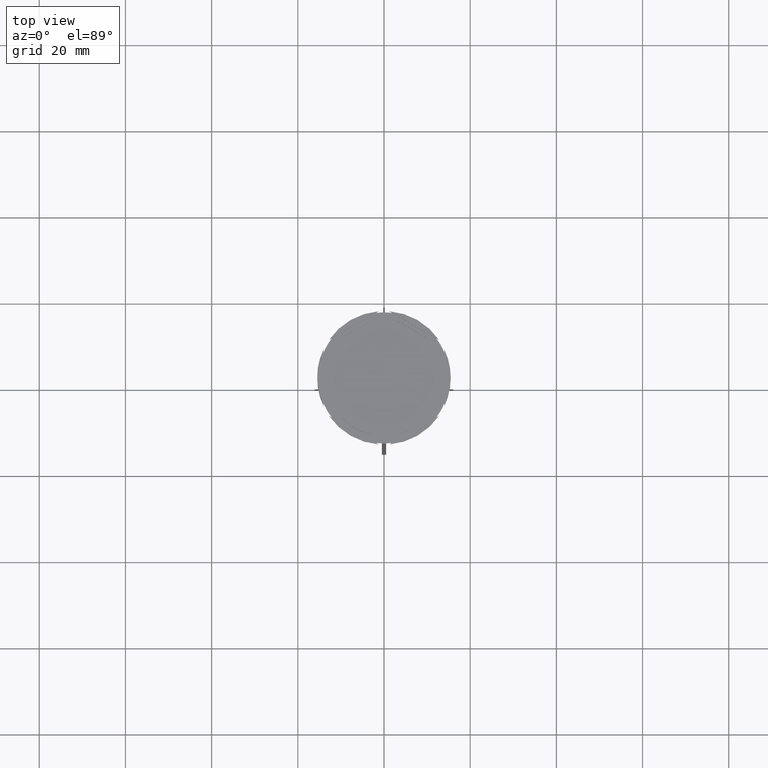
[diagram: clean part render]
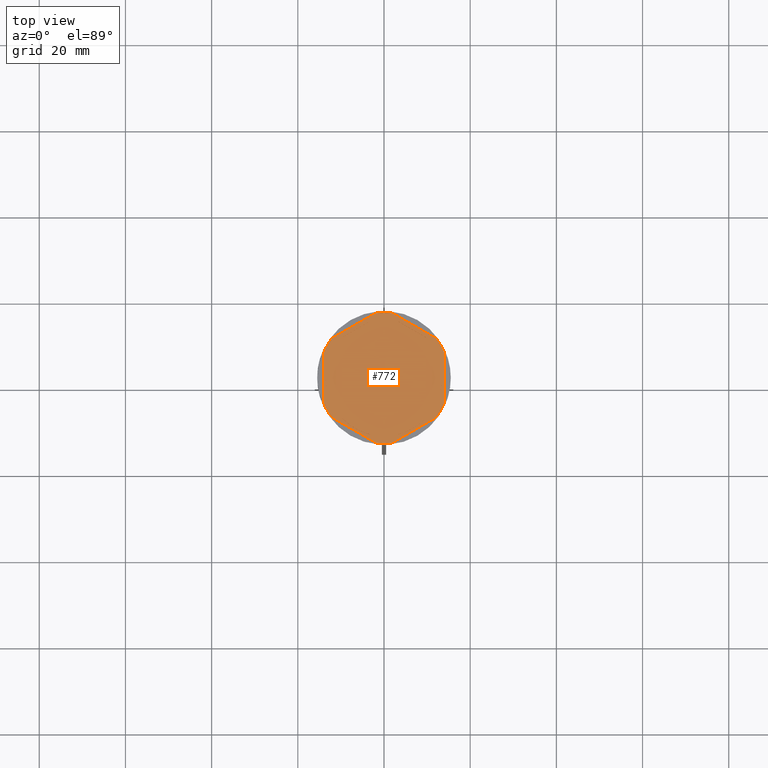
[diagram: same view with one face highlighted and labeled with its STEP entity id]
A machine part, top view. The second image highlights one B-rep face of the part: STEP entity #772.
In plain terms, the highlighted planar face has unit normal (0, 0, 1).
Its self-contained STEP definition (entity closure, byte-faithful):
#2 = DIRECTION ( 'NONE',  ( -0.8660254037844387076, 0.4999999999999997780, 0.000000000000000000 ) ) ;
#4 = CARTESIAN_POINT ( 'NONE',  ( -9.652380053229617118, -9.438302776877577571, -1.000000000000000888 ) ) ;
#20 = CARTESIAN_POINT ( 'NONE',  ( 9.652380053229610013, 9.438302776877588229, -1.000000000000000888 ) ) ;
#23 = DIRECTION ( 'NONE',  ( -0.000000000000000000, -0.000000000000000000, -1.000000000000000000 ) ) ;
#28 = EDGE_LOOP ( 'NONE', ( #2784, #622 ) ) ;
#30 = EDGE_CURVE ( 'NONE', #685, #1607, #906, .T. ) ;
#51 = AXIS2_PLACEMENT_3D ( 'NONE', #2876, #689, #1556 ) ;
#64 = DIRECTION ( 'NONE',  ( 0.8660254037844385966, 0.5000000000000001110, -0.000000000000000000 ) ) ;
#66 = CARTESIAN_POINT ( 'NONE',  ( 13.00000000000000000, -7.505553499465137612, -1.000000000000000888 ) ) ;
#91 = CIRCLE ( 'NONE', #131, 13.50000000000000000 ) ;
#101 = VECTOR ( 'NONE', #136, 1000.000000000000000 ) ;
#105 = VERTEX_POINT ( 'NONE', #2275 ) ;
#111 = DIRECTION ( 'NONE',  ( 0.000000000000000000, 1.000000000000000000, 0.000000000000000000 ) ) ;
#116 = CARTESIAN_POINT ( 'NONE',  ( -13.00000000000000178, 3.640054944640251033, -1.000000000000000888 ) ) ;
#131 = AXIS2_PLACEMENT_3D ( 'NONE', #2390, #872, #1767 ) ;
#136 = DIRECTION ( 'NONE',  ( 0.000000000000000000, -1.000000000000000000, 0.000000000000000000 ) ) ;
#138 = CARTESIAN_POINT ( 'NONE',  ( -3.347619946770386434, 13.07835772151782905, -1.000000000000000888 ) ) ;
#159 = DIRECTION ( 'NONE',  ( 1.000000000000000000, -5.329070518200752183E-15, 0.000000000000000000 ) ) ;
#172 = VERTEX_POINT ( 'NONE', #2703 ) ;
#177 = VECTOR ( 'NONE', #747, 1000.000000000000000 ) ;
#178 = VERTEX_POINT ( 'NONE', #1872 ) ;
#221 = CARTESIAN_POINT ( 'NONE',  ( -1.873597752809485151, -15.08408537037189312, -1.000000000000000000 ) ) ;
#232 = VERTEX_POINT ( 'NONE', #1187 ) ;
#260 = CARTESIAN_POINT ( 'NONE',  ( -13.00000000000000178, -7.505553499465134060, -1.000000000000000888 ) ) ;
#271 = LINE ( 'NONE', #941, #662 ) ;
#321 = CARTESIAN_POINT ( 'NONE',  ( 1.873597752809481598, 15.08408537037189134, -1.000000000000000000 ) ) ;
#344 = VERTEX_POINT ( 'NONE', #321 ) ;
#349 = VERTEX_POINT ( 'NONE', #116 ) ;
#353 = DIRECTION ( 'NONE',  ( 0.8660254037844385966, 0.5000000000000000000, 0.000000000000000000 ) ) ;
#355 = CARTESIAN_POINT ( 'NONE',  ( -9.652380053229617118, 9.438302776877577571, -1.000000000000000888 ) ) ;
#356 = VERTEX_POINT ( 'NONE', #221 ) ;
#362 = EDGE_CURVE ( 'NONE', #1274, #839, #925, .T. ) ;
#365 = EDGE_CURVE ( 'NONE', #2812, #2599, #411, .T. ) ;
#371 = CARTESIAN_POINT ( 'NONE',  ( -14.00000000000000178, 8.082903768654759347, -1.000000000000000000 ) ) ;
#378 = DIRECTION ( 'NONE',  ( -0.000000000000000000, -0.000000000000000000, -1.000000000000000000 ) ) ;
#396 = CARTESIAN_POINT ( 'NONE',  ( 0.000000000000000000, 0.000000000000000000, -1.000000000000000000 ) ) ;
#411 = CIRCLE ( 'NONE', #1396, 15.19999999999999929 ) ;
#413 = FACE_BOUND ( 'NONE', #2527, .T. ) ;
#414 = AXIS2_PLACEMENT_3D ( 'NONE', #1135, #924, #1384 ) ;
#419 = ORIENTED_EDGE ( 'NONE', *, *, #2046, .F. ) ;
#454 = EDGE_CURVE ( 'NONE', #2812, #344, #827, .T. ) ;
#477 = CARTESIAN_POINT ( 'NONE',  ( 0.000000000000000000, 0.000000000000000000, -1.000000000000000000 ) ) ;
#501 = EDGE_CURVE ( 'NONE', #1392, #232, #91, .T. ) ;
#507 = ORIENTED_EDGE ( 'NONE', *, *, #2616, .F. ) ;
#521 = ORIENTED_EDGE ( 'NONE', *, *, #1687, .T. ) ;
#532 = VERTEX_POINT ( 'NONE', #20 ) ;
#578 = ORIENTED_EDGE ( 'NONE', *, *, #942, .F. ) ;
#600 = VECTOR ( 'NONE', #1480, 1000.000000000000000 ) ;
#622 = ORIENTED_EDGE ( 'NONE', *, *, #852, .F. ) ;
#633 = EDGE_LOOP ( 'NONE', ( #507, #2667, #2121 ) ) ;
#634 = CARTESIAN_POINT ( 'NONE',  ( 0.000000000000000000, 0.000000000000000000, -1.000000000000000000 ) ) ;
#645 = CARTESIAN_POINT ( 'NONE',  ( -1.873597752809482486, 15.08408537037188957, -1.000000000000000000 ) ) ;
#654 = ORIENTED_EDGE ( 'NONE', *, *, #365, .F. ) ;
#662 = VECTOR ( 'NONE', #2720, 1000.000000000000114 ) ;
#670 = DIRECTION ( 'NONE',  ( 0.8660254037844388186, -0.4999999999999997780, 0.000000000000000000 ) ) ;
#672 = VERTEX_POINT ( 'NONE', #355 ) ;
#678 = CARTESIAN_POINT ( 'NONE',  ( 0.000000000000000000, 0.000000000000000000, -1.000000000000000000 ) ) ;
#681 = DIRECTION ( 'NONE',  ( -0.8660254037844385966, 0.5000000000000001110, 0.000000000000000000 ) ) ;
#682 = VERTEX_POINT ( 'NONE', #138 ) ;
#685 = VERTEX_POINT ( 'NONE', #2586 ) ;
#689 = DIRECTION ( 'NONE',  ( 0.000000000000000000, 0.000000000000000000, 1.000000000000000000 ) ) ;
#690 = EDGE_CURVE ( 'NONE', #2430, #178, #1026, .T. ) ;
#747 = DIRECTION ( 'NONE',  ( -2.311253228826398661E-16, -1.000000000000000000, 0.000000000000000000 ) ) ;
#772 = ADVANCED_FACE ( 'NONE', ( #1090, #1150, #413, #2868, #1604, #1543, #866 ), #2454, .T. ) ;
#792 = CIRCLE ( 'NONE', #1548, 13.50000000000000000 ) ;
#793 = EDGE_CURVE ( 'NONE', #1272, #2197, #1116, .T. ) ;
#822 = ORIENTED_EDGE ( 'NONE', *, *, #1002, .F. ) ;
#827 = LINE ( 'NONE', #1724, #1349 ) ;
#839 = VERTEX_POINT ( 'NONE', #2003 ) ;
#841 = AXIS2_PLACEMENT_3D ( 'NONE', #477, #1376, #2724 ) ;
#851 = DIRECTION ( 'NONE',  ( 1.000000000000000000, 0.000000000000000000, 0.000000000000000000 ) ) ;
#852 = EDGE_CURVE ( 'NONE', #1902, #1315, #1115, .T. ) ;
#866 = FACE_OUTER_BOUND ( 'NONE', #1459, .T. ) ;
#871 = ORIENTED_EDGE ( 'NONE', *, *, #362, .F. ) ;
#872 = DIRECTION ( 'NONE',  ( 0.000000000000000000, 0.000000000000000000, 1.000000000000000000 ) ) ;
#878 = DIRECTION ( 'NONE',  ( 1.000000000000000000, 0.000000000000000000, 0.000000000000000000 ) ) ;
#882 = EDGE_CURVE ( 'NONE', #178, #2430, #1670, .T. ) ;
#889 = AXIS2_PLACEMENT_3D ( 'NONE', #1094, #378, #159 ) ;
#892 = LINE ( 'NONE', #1389, #1358 ) ;
#896 = CIRCLE ( 'NONE', #1684, 13.50000000000000000 ) ;
#906 = LINE ( 'NONE', #66, #177 ) ;
#909 = CARTESIAN_POINT ( 'NONE',  ( -3.347619946770386434, -13.07835772151782905, -1.000000000000000888 ) ) ;
#911 = DIRECTION ( 'NONE',  ( -0.000000000000000000, -0.000000000000000000, -1.000000000000000000 ) ) ;
#924 = DIRECTION ( 'NONE',  ( 0.000000000000000000, 0.000000000000000000, 1.000000000000000000 ) ) ;
#925 = CIRCLE ( 'NONE', #2551, 15.19999999999999929 ) ;
#927 = VECTOR ( 'NONE', #681, 1000.000000000000000 ) ;
#936 = EDGE_CURVE ( 'NONE', #105, #2009, #1862, .T. ) ;
#941 = CARTESIAN_POINT ( 'NONE',  ( 0.000000000000000000, 16.16580753730952225, -1.000000000000000000 ) ) ;
#942 = EDGE_CURVE ( 'NONE', #682, #672, #1590, .T. ) ;
#948 = ORIENTED_EDGE ( 'NONE', *, *, #1318, .F. ) ;
#957 = CARTESIAN_POINT ( 'NONE',  ( -13.00000000000000178, 7.505553499465134060, -1.000000000000000888 ) ) ;
#975 = AXIS2_PLACEMENT_3D ( 'NONE', #678, #1086, #851 ) ;
#1002 = EDGE_CURVE ( 'NONE', #1607, #685, #2279, .T. ) ;
#1008 = VERTEX_POINT ( 'NONE', #2863 ) ;
#1013 = VERTEX_POINT ( 'NONE', #645 ) ;
#1026 = LINE ( 'NONE', #1963, #600 ) ;
#1045 = LINE ( 'NONE', #1824, #2139 ) ;
#1077 = VECTOR ( 'NONE', #2198, 1000.000000000000000 ) ;
#1081 = DIRECTION ( 'NONE',  ( 1.000000000000000000, 0.000000000000000000, 0.000000000000000000 ) ) ;
#1086 = DIRECTION ( 'NONE',  ( 0.000000000000000000, 0.000000000000000000, 1.000000000000000000 ) ) ;
#1090 = FACE_BOUND ( 'NONE', #1169, .T. ) ;
#1094 = CARTESIAN_POINT ( 'NONE',  ( 0.000000000000000000, 0.000000000000000000, -1.000000000000000000 ) ) ;
#1104 = CARTESIAN_POINT ( 'NONE',  ( 0.000000000000000000, 0.000000000000000000, -1.000000000000000000 ) ) ;
#1109 = CARTESIAN_POINT ( 'NONE',  ( 0.000000000000000000, 0.000000000000000000, -1.000000000000000000 ) ) ;
#1115 = LINE ( 'NONE', #260, #927 ) ;
#1116 = CIRCLE ( 'NONE', #1488, 15.19999999999999929 ) ;
#1119 = EDGE_LOOP ( 'NONE', ( #578, #948 ) ) ;
#1124 = CIRCLE ( 'NONE', #2750, 13.50000000000000000 ) ;
#1135 = CARTESIAN_POINT ( 'NONE',  ( 0.000000000000000000, 0.000000000000000000, -1.000000000000000000 ) ) ;
#1150 = FACE_BOUND ( 'NONE', #1854, .T. ) ;
#1169 = EDGE_LOOP ( 'NONE', ( #419, #2345 ) ) ;
#1187 = CARTESIAN_POINT ( 'NONE',  ( -13.00000000000000178, -3.640054944640251033, -1.000000000000000888 ) ) ;
#1211 = AXIS2_PLACEMENT_3D ( 'NONE', #396, #23, #2450 ) ;
#1215 = CARTESIAN_POINT ( 'NONE',  ( 14.00000000000000000, 5.919459434779493989, -1.000000000000000000 ) ) ;
#1217 = VECTOR ( 'NONE', #2440, 999.9999999999998863 ) ;
#1242 = CARTESIAN_POINT ( 'NONE',  ( 0.000000000000000000, 0.000000000000000000, -1.000000000000000000 ) ) ;
#1244 = LINE ( 'NONE', #371, #101 ) ;
#1272 = VERTEX_POINT ( 'NONE', #2860 ) ;
#1274 = VERTEX_POINT ( 'NONE', #2201 ) ;
#1279 = DIRECTION ( 'NONE',  ( 0.000000000000000000, 0.000000000000000000, 1.000000000000000000 ) ) ;
#1315 = VERTEX_POINT ( 'NONE', #4 ) ;
#1318 = EDGE_CURVE ( 'NONE', #672, #682, #892, .T. ) ;
#1349 = VECTOR ( 'NONE', #2, 1000.000000000000114 ) ;
#1351 = DIRECTION ( 'NONE',  ( 0.000000000000000000, 0.000000000000000000, 1.000000000000000000 ) ) ;
#1358 = VECTOR ( 'NONE', #64, 1000.000000000000000 ) ;
#1370 = DIRECTION ( 'NONE',  ( 1.000000000000000000, 0.000000000000000000, 0.000000000000000000 ) ) ;
#1376 = DIRECTION ( 'NONE',  ( -0.000000000000000000, -0.000000000000000000, -1.000000000000000000 ) ) ;
#1384 = DIRECTION ( 'NONE',  ( 1.000000000000000000, 0.000000000000000000, 0.000000000000000000 ) ) ;
#1389 = CARTESIAN_POINT ( 'NONE',  ( 0.000000000000000000, 15.01110699893027167, -1.000000000000000888 ) ) ;
#1392 = VERTEX_POINT ( 'NONE', #2026 ) ;
#1396 = AXIS2_PLACEMENT_3D ( 'NONE', #1109, #1971, #2610 ) ;
#1402 = ORIENTED_EDGE ( 'NONE', *, *, #2493, .T. ) ;
#1459 = EDGE_LOOP ( 'NONE', ( #521, #654, #1651, #1848, #2605, #1752, #1552, #871, #2373, #2883, #1402, #2798 ) ) ;
#1480 = DIRECTION ( 'NONE',  ( -0.8660254037844387076, -0.4999999999999999445, 0.000000000000000000 ) ) ;
#1488 = AXIS2_PLACEMENT_3D ( 'NONE', #2879, #911, #878 ) ;
#1543 = FACE_BOUND ( 'NONE', #1119, .T. ) ;
#1548 = AXIS2_PLACEMENT_3D ( 'NONE', #634, #1351, #1370 ) ;
#1552 = ORIENTED_EDGE ( 'NONE', *, *, #2145, .T. ) ;
#1556 = DIRECTION ( 'NONE',  ( 1.000000000000000000, 0.000000000000000000, 0.000000000000000000 ) ) ;
#1558 = CARTESIAN_POINT ( 'NONE',  ( 13.00000000000000355, 7.505553499465135836, -1.000000000000000888 ) ) ;
#1590 = CIRCLE ( 'NONE', #975, 13.50000000000000000 ) ;
#1598 = ORIENTED_EDGE ( 'NONE', *, *, #882, .F. ) ;
#1604 = FACE_BOUND ( 'NONE', #633, .T. ) ;
#1607 = VERTEX_POINT ( 'NONE', #2150 ) ;
#1651 = ORIENTED_EDGE ( 'NONE', *, *, #454, .T. ) ;
#1665 = CARTESIAN_POINT ( 'NONE',  ( 1.740335835716699810E-15, -16.16580753730952225, -1.000000000000000000 ) ) ;
#1670 = CIRCLE ( 'NONE', #414, 13.50000000000000000 ) ;
#1684 = AXIS2_PLACEMENT_3D ( 'NONE', #1242, #2124, #2377 ) ;
#1687 = EDGE_CURVE ( 'NONE', #1272, #2599, #2403, .T. ) ;
#1706 = EDGE_CURVE ( 'NONE', #1013, #344, #2520, .T. ) ;
#1724 = CARTESIAN_POINT ( 'NONE',  ( 14.00000000000000178, 8.082903768654762899, -1.000000000000000000 ) ) ;
#1726 = EDGE_CURVE ( 'NONE', #1274, #356, #1045, .T. ) ;
#1752 = ORIENTED_EDGE ( 'NONE', *, *, #936, .F. ) ;
#1762 = DIRECTION ( 'NONE',  ( 0.000000000000000000, 0.000000000000000000, 1.000000000000000000 ) ) ;
#1767 = DIRECTION ( 'NONE',  ( 1.000000000000000000, 0.000000000000000000, 0.000000000000000000 ) ) ;
#1824 = CARTESIAN_POINT ( 'NONE',  ( -14.00000000000000178, -8.082903768654762899, -1.000000000000000000 ) ) ;
#1833 = CARTESIAN_POINT ( 'NONE',  ( 0.000000000000000000, 0.000000000000000000, -1.000000000000000000 ) ) ;
#1848 = ORIENTED_EDGE ( 'NONE', *, *, #1706, .F. ) ;
#1854 = EDGE_LOOP ( 'NONE', ( #822, #2710 ) ) ;
#1862 = CIRCLE ( 'NONE', #1211, 15.19999999999999929 ) ;
#1871 = EDGE_CURVE ( 'NONE', #172, #356, #2477, .T. ) ;
#1872 = CARTESIAN_POINT ( 'NONE',  ( 3.347619946770387322, -13.07835772151783083, -1.000000000000000888 ) ) ;
#1885 = LINE ( 'NONE', #1665, #2142 ) ;
#1902 = VERTEX_POINT ( 'NONE', #909 ) ;
#1953 = DIRECTION ( 'NONE',  ( -0.000000000000000000, -0.000000000000000000, -1.000000000000000000 ) ) ;
#1963 = CARTESIAN_POINT ( 'NONE',  ( -8.673617379884035472E-16, -15.01110699893027167, -1.000000000000000888 ) ) ;
#1971 = DIRECTION ( 'NONE',  ( -0.000000000000000000, -0.000000000000000000, -1.000000000000000000 ) ) ;
#2003 = CARTESIAN_POINT ( 'NONE',  ( -14.00000000000000178, -5.919459434779493989, -1.000000000000000000 ) ) ;
#2009 = VERTEX_POINT ( 'NONE', #2468 ) ;
#2019 = CARTESIAN_POINT ( 'NONE',  ( 12.12640224719051751, -9.164625935592392025, -1.000000000000000000 ) ) ;
#2020 = DIRECTION ( 'NONE',  ( 1.000000000000000000, 0.000000000000000000, -0.000000000000000000 ) ) ;
#2026 = CARTESIAN_POINT ( 'NONE',  ( -13.50000000000000000, 0.000000000000000000, -1.000000000000000000 ) ) ;
#2046 = EDGE_CURVE ( 'NONE', #532, #1008, #1124, .T. ) ;
#2052 = VECTOR ( 'NONE', #111, 1000.000000000000000 ) ;
#2121 = ORIENTED_EDGE ( 'NONE', *, *, #501, .F. ) ;
#2124 = DIRECTION ( 'NONE',  ( 0.000000000000000000, 0.000000000000000000, 1.000000000000000000 ) ) ;
#2139 = VECTOR ( 'NONE', #670, 1000.000000000000114 ) ;
#2142 = VECTOR ( 'NONE', #353, 1000.000000000000227 ) ;
#2145 = EDGE_CURVE ( 'NONE', #105, #839, #1244, .T. ) ;
#2150 = CARTESIAN_POINT ( 'NONE',  ( 13.00000000000000178, -3.640054944640254142, -1.000000000000000888 ) ) ;
#2170 = DIRECTION ( 'NONE',  ( 1.000000000000000000, 0.000000000000000000, 0.000000000000000000 ) ) ;
#2197 = VERTEX_POINT ( 'NONE', #2019 ) ;
#2198 = DIRECTION ( 'NONE',  ( 1.073081856240827950E-16, 1.000000000000000000, 0.000000000000000000 ) ) ;
#2201 = CARTESIAN_POINT ( 'NONE',  ( -12.12640224719051218, -9.164625935592404460, -1.000000000000000000 ) ) ;
#2206 = LINE ( 'NONE', #1558, #1217 ) ;
#2249 = LINE ( 'NONE', #957, #2052 ) ;
#2272 = EDGE_CURVE ( 'NONE', #1315, #1902, #792, .T. ) ;
#2275 = CARTESIAN_POINT ( 'NONE',  ( -14.00000000000000178, 5.919459434779493989, -1.000000000000000000 ) ) ;
#2279 = CIRCLE ( 'NONE', #51, 13.50000000000000000 ) ;
#2292 = EDGE_CURVE ( 'NONE', #1008, #532, #2206, .T. ) ;
#2309 = CARTESIAN_POINT ( 'NONE',  ( 12.12640224719051574, 9.164625935592399131, -1.000000000000000000 ) ) ;
#2345 = ORIENTED_EDGE ( 'NONE', *, *, #2292, .F. ) ;
#2373 = ORIENTED_EDGE ( 'NONE', *, *, #1726, .T. ) ;
#2377 = DIRECTION ( 'NONE',  ( 1.000000000000000000, 0.000000000000000000, 0.000000000000000000 ) ) ;
#2390 = CARTESIAN_POINT ( 'NONE',  ( 0.000000000000000000, 0.000000000000000000, -1.000000000000000000 ) ) ;
#2403 = LINE ( 'NONE', #2652, #1077 ) ;
#2430 = VERTEX_POINT ( 'NONE', #2746 ) ;
#2440 = DIRECTION ( 'NONE',  ( 0.8660254037844387076, -0.5000000000000001110, 0.000000000000000000 ) ) ;
#2450 = DIRECTION ( 'NONE',  ( 1.000000000000000000, 0.000000000000000000, 0.000000000000000000 ) ) ;
#2451 = EDGE_CURVE ( 'NONE', #1013, #2009, #271, .T. ) ;
#2454 = PLANE ( 'NONE',  #2834 ) ;
#2457 = ORIENTED_EDGE ( 'NONE', *, *, #690, .F. ) ;
#2468 = CARTESIAN_POINT ( 'NONE',  ( -12.12640224719051751, 9.164625935592393802, -1.000000000000000000 ) ) ;
#2477 = CIRCLE ( 'NONE', #841, 15.19999999999999929 ) ;
#2493 = EDGE_CURVE ( 'NONE', #172, #2197, #1885, .T. ) ;
#2520 = CIRCLE ( 'NONE', #889, 15.19999999999999929 ) ;
#2527 = EDGE_LOOP ( 'NONE', ( #1598, #2457 ) ) ;
#2551 = AXIS2_PLACEMENT_3D ( 'NONE', #2844, #1953, #1081 ) ;
#2586 = CARTESIAN_POINT ( 'NONE',  ( 13.00000000000000178, 3.640054944640248369, -1.000000000000000888 ) ) ;
#2599 = VERTEX_POINT ( 'NONE', #1215 ) ;
#2605 = ORIENTED_EDGE ( 'NONE', *, *, #2451, .T. ) ;
#2610 = DIRECTION ( 'NONE',  ( 1.000000000000000000, -9.769962616701377556E-15, 0.000000000000000000 ) ) ;
#2616 = EDGE_CURVE ( 'NONE', #349, #1392, #896, .T. ) ;
#2652 = CARTESIAN_POINT ( 'NONE',  ( 14.00000000000000000, -8.082903768654761123, -1.000000000000000000 ) ) ;
#2667 = ORIENTED_EDGE ( 'NONE', *, *, #2880, .F. ) ;
#2703 = CARTESIAN_POINT ( 'NONE',  ( 1.873597752809482486, -15.08408537037188779, -1.000000000000000000 ) ) ;
#2710 = ORIENTED_EDGE ( 'NONE', *, *, #30, .F. ) ;
#2720 = DIRECTION ( 'NONE',  ( -0.8660254037844385966, -0.4999999999999999445, 0.000000000000000000 ) ) ;
#2724 = DIRECTION ( 'NONE',  ( 1.000000000000000000, 0.000000000000000000, 0.000000000000000000 ) ) ;
#2746 = CARTESIAN_POINT ( 'NONE',  ( 9.652380053229613566, -9.438302776877582900, -1.000000000000000888 ) ) ;
#2750 = AXIS2_PLACEMENT_3D ( 'NONE', #1833, #1279, #2170 ) ;
#2784 = ORIENTED_EDGE ( 'NONE', *, *, #2272, .F. ) ;
#2798 = ORIENTED_EDGE ( 'NONE', *, *, #793, .F. ) ;
#2812 = VERTEX_POINT ( 'NONE', #2309 ) ;
#2834 = AXIS2_PLACEMENT_3D ( 'NONE', #1104, #1762, #2020 ) ;
#2844 = CARTESIAN_POINT ( 'NONE',  ( 0.000000000000000000, 0.000000000000000000, -1.000000000000000000 ) ) ;
#2860 = CARTESIAN_POINT ( 'NONE',  ( 14.00000000000000000, -5.919459434779497542, -1.000000000000000000 ) ) ;
#2863 = CARTESIAN_POINT ( 'NONE',  ( 3.347619946770397537, 13.07835772151782905, -1.000000000000000888 ) ) ;
#2868 = FACE_BOUND ( 'NONE', #28, .T. ) ;
#2876 = CARTESIAN_POINT ( 'NONE',  ( 0.000000000000000000, 0.000000000000000000, -1.000000000000000000 ) ) ;
#2879 = CARTESIAN_POINT ( 'NONE',  ( 0.000000000000000000, 0.000000000000000000, -1.000000000000000000 ) ) ;
#2880 = EDGE_CURVE ( 'NONE', #232, #349, #2249, .T. ) ;
#2883 = ORIENTED_EDGE ( 'NONE', *, *, #1871, .F. ) ;